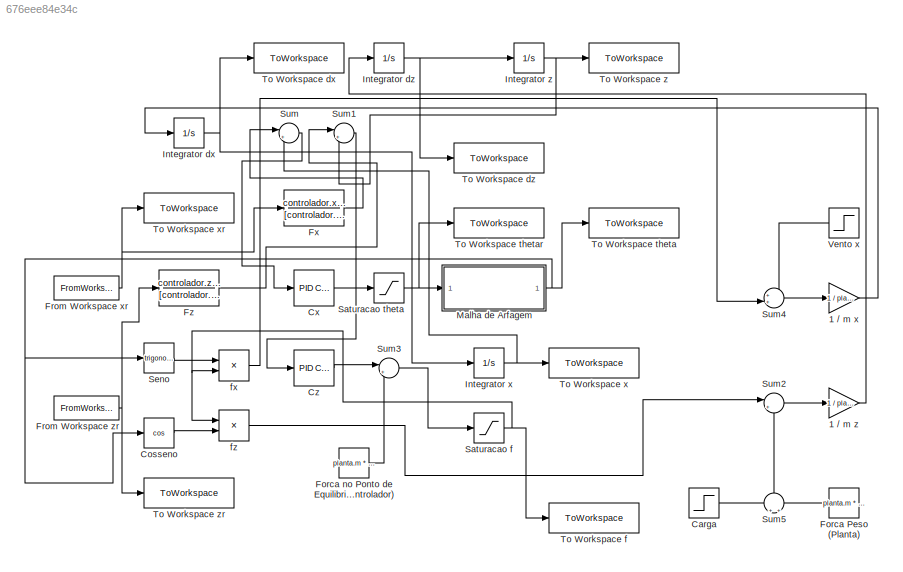
MODEL slx_676eee84e34c
KIND model
CONFIG AbsTol = auto
CONFIG EnableMultiTasking = off
CONFIG FixedStep = 1e-3
CONFIG MaxStep = auto
CONFIG MinStep = auto
CONFIG RelTol = 1e-3
CONFIG SampleTimeConstraint = Unconstrained
CONFIG SolverName = FixedStepAuto
CONFIG StartTime = 0.0
CONFIG StopTime = 20
BLOCK [Gain] 1 // m x
  Gain = 1 / planta.m
BLOCK [Gain] 1 // m z
  Gain = 1 / planta.m
BLOCK [Step] Carga
  After = carga * planta.g
  SampleTime = 0
  Time = 3
BLOCK [Trigonometry] Cosseno
  Operator = cos
  Ports = [1, 1]
BLOCK [Reference] Cx  REF=pid_lib/PID Controller
  Ports = [1, 1]
  SourceBlock = pid_lib/PID Controller
  SourceProductBaseCode = SL
  SourceType = PID 1dof
BLOCK [Reference] Cz  REF=pid_lib/PID Controller
  Ports = [1, 1]
  SourceBlock = pid_lib/PID Controller
  SourceProductBaseCode = SL
  SourceType = PID 1dof
BLOCK [Constant] Forca Peso (Planta)
  Value = planta.m * planta.g
BLOCK [Constant] Forca no Ponto de Equilibrio f0 (Controlador)
  Value = planta.m * planta.g
BLOCK [FromWorkspace] From Workspace xr
  VariableName = xr
BLOCK [FromWorkspace] From Workspace zr
  VariableName = zr
BLOCK [TransferFcn] Fx
  Denominator = [controlador.x.Kd, controlador.x.Kp, controlador.x.Ki]
  Numerator = controlador.x.Ki
BLOCK [TransferFcn] Fz
  Denominator = [controlador.z.Kd, controlador.z.Kp, controlador.z.Ki]
  Numerator = controlador.z.Ki
BLOCK [Integrator] Integrator dx
  Ports = [1, 1]
BLOCK [Integrator] Integrator dz
  Ports = [1, 1]
BLOCK [Integrator] Integrator x
  Ports = [1, 1]
BLOCK [Integrator] Integrator z
  Ports = [1, 1]
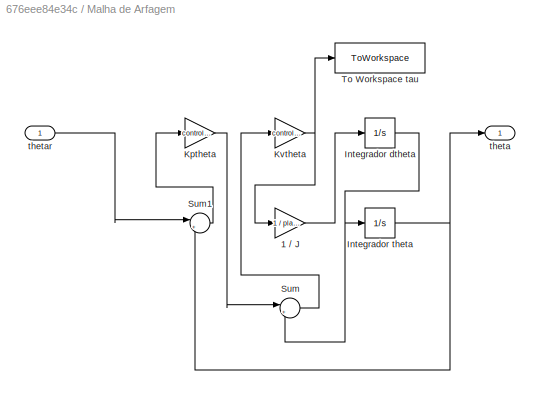
BLOCK [SubSystem] Malha de Arfagem
  Ports = [1, 1]
  RequestExecContextInheritance = off
BLOCK [Gain] Malha de Arfagem/1 // J
  Gain = 1 / planta.J
BLOCK [Integrator] Malha de Arfagem/Integrador dtheta
  Ports = [1, 1]
BLOCK [Integrator] Malha de Arfagem/Integrador theta
  InitialCondition = theta0
  Ports = [1, 1]
BLOCK [Gain] Malha de Arfagem/Kptheta
  Gain = controlador.theta.Kp
BLOCK [Gain] Malha de Arfagem/Kvtheta
  Gain = controlador.theta.Kv
BLOCK [Sum] Malha de Arfagem/Sum
  Inputs = |+-
  Ports = [2, 1]
BLOCK [Sum] Malha de Arfagem/Sum1
  Inputs = |+-
  Ports = [2, 1]
BLOCK [ToWorkspace] Malha de Arfagem/To Workspace tau
  FixptAsFi = on
  MaxDataPoints = inf
  Ports = [1]
  SampleTime = -1
  SaveFormat = Structure With Time
  VariableName = tau
BLOCK [Outport] Malha de Arfagem/theta
BLOCK [Inport] Malha de Arfagem/thetar
BLOCK [Saturate] Saturacao f
  LowerLimit = 0.2 * planta.m * planta.g
  UpperLimit = 1.8 * planta.m * planta.g
BLOCK [Saturate] Saturacao theta
  LowerLimit = -80 * pi / 180
  UpperLimit = 80 * pi / 180
BLOCK [Trigonometry] Seno
  Ports = [1, 1]
BLOCK [Sum] Sum
  Inputs = |+-
  Ports = [2, 1]
BLOCK [Sum] Sum1
  Inputs = |+-
  Ports = [2, 1]
BLOCK [Sum] Sum2
  Inputs = |+-
  Ports = [2, 1]
BLOCK [Sum] Sum3
  Inputs = |++
  Ports = [2, 1]
BLOCK [Sum] Sum4
  Inputs = ++|
  Ports = [2, 1]
BLOCK [Sum] Sum5
  Inputs = +|+
  NameLocation = right
  Ports = [2, 1]
BLOCK [ToWorkspace] To Workspace dx
  FixptAsFi = on
  MaxDataPoints = inf
  Ports = [1]
  SampleTime = -1
  SaveFormat = Structure With Time
  VariableName = dx
BLOCK [ToWorkspace] To Workspace dz
  FixptAsFi = on
  MaxDataPoints = inf
  Ports = [1]
  SampleTime = -1
  SaveFormat = Structure With Time
  VariableName = dz
BLOCK [ToWorkspace] To Workspace f
  FixptAsFi = on
  MaxDataPoints = inf
  Ports = [1]
  SampleTime = -1
  SaveFormat = Structure With Time
  VariableName = f
BLOCK [ToWorkspace] To Workspace theta
  FixptAsFi = on
  MaxDataPoints = inf
  Ports = [1]
  SampleTime = -1
  SaveFormat = Structure With Time
  VariableName = theta
BLOCK [ToWorkspace] To Workspace thetar
  FixptAsFi = on
  MaxDataPoints = inf
  Ports = [1]
  SampleTime = -1
  SaveFormat = Structure With Time
  VariableName = thetar
BLOCK [ToWorkspace] To Workspace x
  FixptAsFi = on
  MaxDataPoints = inf
  Ports = [1]
  SampleTime = -1
  SaveFormat = Structure With Time
  VariableName = x
BLOCK [ToWorkspace] To Workspace xr
  FixptAsFi = on
  MaxDataPoints = inf
  Ports = [1]
  SampleTime = -1
  SaveFormat = Structure With Time
  VariableName = xr
BLOCK [ToWorkspace] To Workspace z
  FixptAsFi = on
  MaxDataPoints = inf
  Ports = [1]
  SampleTime = -1
  SaveFormat = Structure With Time
  VariableName = z
BLOCK [ToWorkspace] To Workspace zr
  FixptAsFi = on
  MaxDataPoints = inf
  Ports = [1]
  SampleTime = -1
  SaveFormat = Structure With Time
  VariableName = zr
BLOCK [Step] Vento x
  After = ventoX
  SampleTime = 0
  Time = 3
BLOCK [Product] fx
  Ports = [2, 1]
BLOCK [Product] fz
  Ports = [2, 1]
LINE 1 // m x:1 -> Integrator dx:1
LINE 1 // m z:1 -> Integrator dz:1
LINE Carga:1 -> Sum5:1
LINE Cosseno:1 -> fz:2
LINE Cx:1 -> Saturacao theta:1
LINE Cz:1 -> Sum3:1
LINE Forca Peso (Planta):1 -> Sum5:2
LINE Forca no Ponto de Equilibrio f0 (Controlador):1 -> Sum3:2
NET From Workspace xr:1 -> Fx:1, To Workspace xr:1
NET From Workspace zr:1 -> Fz:1, To Workspace zr:1
LINE Fx:1 -> Sum:1
LINE Fz:1 -> Sum1:1
NET Integrator dx:1 -> Integrator x:1, To Workspace dx:1
NET Integrator dz:1 -> Integrator z:1, To Workspace dz:1
NET Integrator x:1 -> Sum:2, To Workspace x:1
NET Integrator z:1 -> Sum1:2, To Workspace z:1
LINE Malha de Arfagem/1 // J:1 -> Malha de Arfagem/Integrador dtheta:1
NET Malha de Arfagem/Integrador dtheta:1 -> Malha de Arfagem/Integrador theta:1, Malha de Arfagem/Sum:2
NET Malha de Arfagem/Integrador theta:1 -> Malha de Arfagem/Sum1:2, Malha de Arfagem/theta:1
LINE Malha de Arfagem/Kptheta:1 -> Malha de Arfagem/Sum:1
NET Malha de Arfagem/Kvtheta:1 -> Malha de Arfagem/1 // J:1, Malha de Arfagem/To Workspace tau:1
LINE Malha de Arfagem/Sum1:1 -> Malha de Arfagem/Kptheta:1
LINE Malha de Arfagem/Sum:1 -> Malha de Arfagem/Kvtheta:1
LINE Malha de Arfagem/thetar:1 -> Malha de Arfagem/Sum1:1
NET Malha de Arfagem:1 -> Cosseno:1, Seno:1, To Workspace theta:1
NET Saturacao f:1 -> To Workspace f:1, fx:2, fz:1
NET Saturacao theta:1 -> Malha de Arfagem:1, To Workspace thetar:1
LINE Seno:1 -> fx:1
LINE Sum1:1 -> Cz:1
LINE Sum2:1 -> 1 // m z:1
LINE Sum3:1 -> Saturacao f:1
LINE Sum4:1 -> 1 // m x:1
LINE Sum5:1 -> Sum2:2
LINE Sum:1 -> Cx:1
LINE Vento x:1 -> Sum4:1
LINE fx:1 -> Sum4:2
LINE fz:1 -> Sum2:1
note: NET lines group one-source signal fan-out (src -> all destinations, sorted); 1:1 wires keep LINE
